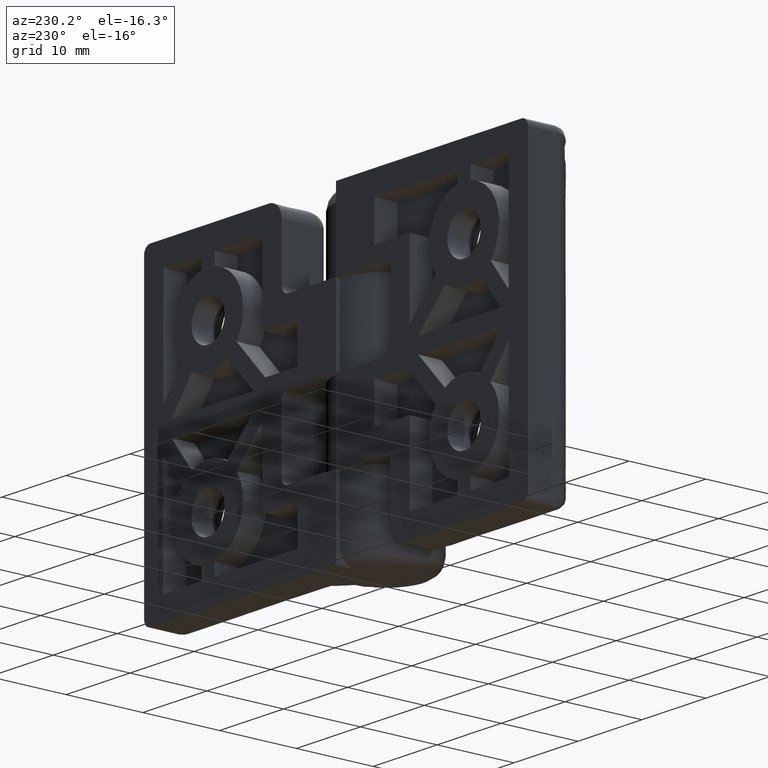
[diagram: clean part render]
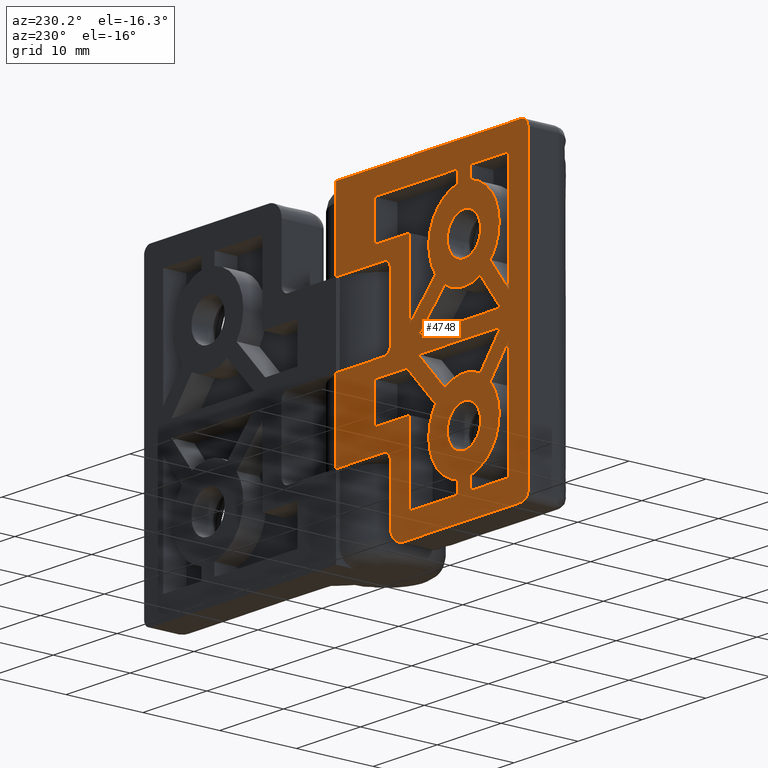
[diagram: same view with one face highlighted and labeled with its STEP entity id]
A machine part, auxiliary view. The second image highlights one B-rep face of the part: STEP entity #4748.
In plain terms, the highlighted face is a freeform B-spline surface patch.
Its self-contained STEP definition (entity closure, byte-faithful):
#1436=CARTESIAN_POINT('',(22.581824768541040,6.500000000000000,30.306889010039711));
#1437=VERTEX_POINT('',#1436);
#1443=CARTESIAN_POINT('',(20.0,6.500000000000000,27.399999999894298));
#1444=VERTEX_POINT('',#1443);
#1445=CARTESIAN_POINT('',(22.581824768541040,6.500000000000000,30.306889010039708));
#1446=CARTESIAN_POINT('',(22.600000000000001,6.500000000000000,30.153982711027506));
#1447=CARTESIAN_POINT('',(22.600000000000001,6.500000000000000,29.999999999894300));
#1448=CARTESIAN_POINT('',(22.599999999999991,6.500000000000001,27.399999999894312));
#1449=CARTESIAN_POINT('',(20.0,6.500000000000000,27.399999999894298));
#1457=(BOUNDED_CURVE()B_SPLINE_CURVE(2,(#1445,#1446,#1447,#1448,#1449),.UNSPECIFIED.,.F.,.U.)B_SPLINE_CURVE_WITH_KNOTS((3,2,3),(0.229562473510691,0.250000000000000,0.500000000000000),.UNSPECIFIED.)CURVE()GEOMETRIC_REPRESENTATION_ITEM()RATIONAL_B_SPLINE_CURVE((0.956026754178177,0.976055948327844,1.0,0.707106781186548,1.0))REPRESENTATION_ITEM(''));
#1458=EDGE_CURVE('',#1437,#1444,#1457,.T.);
#1460=CARTESIAN_POINT('',(17.404849346204220,6.500000000000000,29.841276705778821));
#1461=VERTEX_POINT('',#1460);
#1462=CARTESIAN_POINT('',(20.0,6.500000000000000,27.399999999894298));
#1463=CARTESIAN_POINT('',(17.554161479599799,6.500000000000000,27.399999999894302));
#1464=CARTESIAN_POINT('',(17.404849346204227,6.500000000000000,29.841276705778817));
#1472=(BOUNDED_CURVE()B_SPLINE_CURVE(2,(#1462,#1463,#1464),.UNSPECIFIED.,.F.,.U.)B_SPLINE_CURVE_WITH_KNOTS((3,3),(0.500000000000000,0.739333155634465),.UNSPECIFIED.)CURVE()GEOMETRIC_REPRESENTATION_ITEM()RATIONAL_B_SPLINE_CURVE((1.0,0.719603766709762,0.976072456150487))REPRESENTATION_ITEM(''));
#1473=EDGE_CURVE('',#1444,#1461,#1472,.T.);
#1507=CARTESIAN_POINT('',(20.0,6.500000000000000,32.599999999894301));
#1508=VERTEX_POINT('',#1507);
#1509=CARTESIAN_POINT('',(17.404849346204223,6.499999999999999,29.841276705778817));
#1510=CARTESIAN_POINT('',(17.399999999999995,6.500000000000000,29.920564273733241));
#1511=CARTESIAN_POINT('',(17.399999999999999,6.500000000000000,29.999999999894300));
#1512=CARTESIAN_POINT('',(17.400000000000002,6.500000000000001,32.599999999894301));
#1513=CARTESIAN_POINT('',(20.0,6.500000000000000,32.599999999894301));
#1521=(BOUNDED_CURVE()B_SPLINE_CURVE(2,(#1509,#1510,#1511,#1512,#1513),.UNSPECIFIED.,.F.,.U.)B_SPLINE_CURVE_WITH_KNOTS((3,2,3),(0.739333155634466,0.750000000000000,1.0),.UNSPECIFIED.)CURVE()GEOMETRIC_REPRESENTATION_ITEM()RATIONAL_B_SPLINE_CURVE((0.976072456150487,0.987503014476786,1.0,0.707106781186548,1.0))REPRESENTATION_ITEM(''));
#1522=EDGE_CURVE('',#1461,#1508,#1521,.T.);
#1524=CARTESIAN_POINT('',(20.0,6.500000000000000,32.599999999894301));
#1525=CARTESIAN_POINT('',(22.309253767405398,6.500000000000000,32.599999999894301));
#1526=CARTESIAN_POINT('',(22.581824768541033,6.500000000000000,30.306889010039711));
#1534=(BOUNDED_CURVE()B_SPLINE_CURVE(2,(#1524,#1525,#1526),.UNSPECIFIED.,.F.,.U.)B_SPLINE_CURVE_WITH_KNOTS((3,3),(0.0,0.229562473510691),.UNSPECIFIED.)CURVE()GEOMETRIC_REPRESENTATION_ITEM()RATIONAL_B_SPLINE_CURVE((1.0,0.731050832858703,0.956026754178177))REPRESENTATION_ITEM(''));
#1535=EDGE_CURVE('',#1508,#1437,#1534,.T.);
#1922=CARTESIAN_POINT('',(22.581824768541040,6.500000000000002,10.306889010039709));
#1923=VERTEX_POINT('',#1922);
#1929=CARTESIAN_POINT('',(20.0,6.500000000000000,7.399999999894300));
#1930=VERTEX_POINT('',#1929);
#1931=CARTESIAN_POINT('',(22.581824768541033,6.500000000000002,10.306889010039708));
#1932=CARTESIAN_POINT('',(22.599999999999998,6.499999999999999,10.153982711027501));
#1933=CARTESIAN_POINT('',(22.600000000000001,6.500000000000000,9.999999999894300));
#1934=CARTESIAN_POINT('',(22.599999999999991,6.500000000000001,7.399999999894301));
#1935=CARTESIAN_POINT('',(20.0,6.500000000000000,7.399999999894300));
#1943=(BOUNDED_CURVE()B_SPLINE_CURVE(2,(#1931,#1932,#1933,#1934,#1935),.UNSPECIFIED.,.F.,.U.)B_SPLINE_CURVE_WITH_KNOTS((3,2,3),(0.229562473510691,0.250000000000000,0.500000000000000),.UNSPECIFIED.)CURVE()GEOMETRIC_REPRESENTATION_ITEM()RATIONAL_B_SPLINE_CURVE((0.956026754178177,0.976055948327844,1.0,0.707106781186548,1.0))REPRESENTATION_ITEM(''));
#1944=EDGE_CURVE('',#1923,#1930,#1943,.T.);
#1946=CARTESIAN_POINT('',(17.404849346204220,6.500000000000000,9.841276705778814));
#1947=VERTEX_POINT('',#1946);
#1948=CARTESIAN_POINT('',(20.0,6.500000000000000,7.399999999894300));
#1949=CARTESIAN_POINT('',(17.554161479599795,6.500000000000003,7.399999999894302));
#1950=CARTESIAN_POINT('',(17.404849346204220,6.500000000000000,9.841276705778814));
#1958=(BOUNDED_CURVE()B_SPLINE_CURVE(2,(#1948,#1949,#1950),.UNSPECIFIED.,.F.,.U.)B_SPLINE_CURVE_WITH_KNOTS((3,3),(0.500000000000000,0.739333155634465),.UNSPECIFIED.)CURVE()GEOMETRIC_REPRESENTATION_ITEM()RATIONAL_B_SPLINE_CURVE((1.0,0.719603766709762,0.976072456150487))REPRESENTATION_ITEM(''));
#1959=EDGE_CURVE('',#1930,#1947,#1958,.T.);
#1993=CARTESIAN_POINT('',(20.0,6.500000000000000,12.599999999894299));
#1994=VERTEX_POINT('',#1993);
#1995=CARTESIAN_POINT('',(17.404849346204220,6.500000000000000,9.841276705778814));
#1996=CARTESIAN_POINT('',(17.399999999999999,6.500000000000000,9.920564273733236));
#1997=CARTESIAN_POINT('',(17.399999999999999,6.500000000000000,9.999999999894300));
#1998=CARTESIAN_POINT('',(17.400000000000002,6.500000000000001,12.599999999894298));
#1999=CARTESIAN_POINT('',(20.0,6.500000000000000,12.599999999894299));
#2007=(BOUNDED_CURVE()B_SPLINE_CURVE(2,(#1995,#1996,#1997,#1998,#1999),.UNSPECIFIED.,.F.,.U.)B_SPLINE_CURVE_WITH_KNOTS((3,2,3),(0.739333155634465,0.750000000000000,1.0),.UNSPECIFIED.)CURVE()GEOMETRIC_REPRESENTATION_ITEM()RATIONAL_B_SPLINE_CURVE((0.976072456150487,0.987503014476786,1.0,0.707106781186548,1.0))REPRESENTATION_ITEM(''));
#2008=EDGE_CURVE('',#1947,#1994,#2007,.T.);
#2010=CARTESIAN_POINT('',(20.0,6.500000000000000,12.599999999894299));
#2011=CARTESIAN_POINT('',(22.309253767405401,6.500000000000000,12.599999999894299));
#2012=CARTESIAN_POINT('',(22.581824768541040,6.500000000000002,10.306889010039708));
#2020=(BOUNDED_CURVE()B_SPLINE_CURVE(2,(#2010,#2011,#2012),.UNSPECIFIED.,.F.,.U.)B_SPLINE_CURVE_WITH_KNOTS((3,3),(0.0,0.229562473510691),.UNSPECIFIED.)CURVE()GEOMETRIC_REPRESENTATION_ITEM()RATIONAL_B_SPLINE_CURVE((1.0,0.731050832858703,0.956026754178177))REPRESENTATION_ITEM(''));
#2021=EDGE_CURVE('',#1994,#1923,#2020,.T.);
#2106=CARTESIAN_POINT('',(11.500000000000400,6.500000000000000,37.0));
#2107=VERTEX_POINT('',#2106);
#2108=CARTESIAN_POINT('',(11.500000000000400,6.500000000000000,27.000000000002601));
#2109=VERTEX_POINT('',#2108);
#2110=CARTESIAN_POINT('',(11.500000000000400,6.500000000000000,37.0));
#2111=CARTESIAN_POINT('',(11.500000000000400,6.500000000000000,27.000000000002601));
#2112=QUASI_UNIFORM_CURVE('',1,(#2110,#2111),.UNSPECIFIED.,.F.,.U.);
#2113=EDGE_CURVE('',#2107,#2109,#2112,.T.);
#2134=CARTESIAN_POINT('',(19.000000000000249,6.500000000000000,37.0));
#2135=VERTEX_POINT('',#2134);
#2136=CARTESIAN_POINT('',(19.000000000000249,6.500000000000000,37.0));
#2137=CARTESIAN_POINT('',(11.500000000000400,6.500000000000000,37.0));
#2138=QUASI_UNIFORM_CURVE('',1,(#2136,#2137),.UNSPECIFIED.,.F.,.U.);
#2139=EDGE_CURVE('',#2135,#2107,#2138,.T.);
#2156=CARTESIAN_POINT('',(19.0,6.500000000000000,35.408326913301551));
#2157=VERTEX_POINT('',#2156);
#2158=CARTESIAN_POINT('',(19.0,6.500000000000000,35.408326913301551));
#2159=CARTESIAN_POINT('',(19.000000000000249,6.500000000000000,37.0));
#2160=QUASI_UNIFORM_CURVE('',1,(#2158,#2159),.UNSPECIFIED.,.F.,.U.);
#2161=EDGE_CURVE('',#2157,#2135,#2160,.T.);
#2187=CARTESIAN_POINT('',(15.559502314888899,6.500000000000000,26.754698733886400));
#2188=VERTEX_POINT('',#2187);
#2189=CARTESIAN_POINT('',(19.0,6.500000000000000,35.408326913301543));
#2190=CARTESIAN_POINT('',(16.011818917020033,6.500000000000000,34.855812035606228));
#2191=CARTESIAN_POINT('',(14.889121999860089,6.500000000000000,32.031975902443833));
#2192=CARTESIAN_POINT('',(13.766425082700133,6.500000000000000,29.208139769281438));
#2193=CARTESIAN_POINT('',(15.559502314888899,6.500000000000000,26.754698733886400));
#2201=(BOUNDED_CURVE()B_SPLINE_CURVE(2,(#2189,#2190,#2191,#2192,#2193),.UNSPECIFIED.,.F.,.U.)B_SPLINE_CURVE_WITH_KNOTS((3,2,3),(0.0,0.500000000000000,1.0),.UNSPECIFIED.)CURVE()GEOMETRIC_REPRESENTATION_ITEM()RATIONAL_B_SPLINE_CURVE((1.0,0.875284775002280,1.0,0.875284775002280,1.0))REPRESENTATION_ITEM(''));
#2202=EDGE_CURVE('',#2157,#2188,#2201,.T.);
#2219=CARTESIAN_POINT('',(11.068953510662940,6.500000000000000,22.0));
#2220=VERTEX_POINT('',#2219);
#2221=CARTESIAN_POINT('',(11.068953510662940,6.500000000000000,22.0));
#2222=CARTESIAN_POINT('',(15.559502314888899,6.500000000000000,26.754698733886400));
#2223=QUASI_UNIFORM_CURVE('',1,(#2221,#2222),.UNSPECIFIED.,.F.,.U.);
#2224=EDGE_CURVE('',#2220,#2188,#2223,.T.);
#2241=CARTESIAN_POINT('',(5.999999999999901,6.500000000000000,22.0));
#2242=VERTEX_POINT('',#2241);
#2243=CARTESIAN_POINT('',(5.999999999999901,6.500000000000000,22.0));
#2244=CARTESIAN_POINT('',(11.068953510662940,6.500000000000000,22.0));
#2245=QUASI_UNIFORM_CURVE('',1,(#2243,#2244),.UNSPECIFIED.,.F.,.U.);
#2246=EDGE_CURVE('',#2242,#2220,#2245,.T.);
#2263=CARTESIAN_POINT('',(5.999999999999901,6.500000000000000,27.000000000001201));
#2264=VERTEX_POINT('',#2263);
#2265=CARTESIAN_POINT('',(5.999999999999901,6.500000000000000,27.000000000001201));
#2266=CARTESIAN_POINT('',(5.999999999999901,6.500000000000000,22.0));
#2267=QUASI_UNIFORM_CURVE('',1,(#2265,#2266),.UNSPECIFIED.,.F.,.U.);
#2268=EDGE_CURVE('',#2264,#2242,#2267,.T.);
#2285=CARTESIAN_POINT('',(11.500000000000400,6.500000000000000,27.000000000002601));
#2286=CARTESIAN_POINT('',(5.999999999999901,6.500000000000000,27.000000000001201));
#2287=QUASI_UNIFORM_CURVE('',1,(#2285,#2286),.UNSPECIFIED.,.F.,.U.);
#2288=EDGE_CURVE('',#2109,#2264,#2287,.T.);
#2345=CARTESIAN_POINT('',(25.733138416556699,6.500000000000000,21.000000000105601));
#2346=VERTEX_POINT('',#2345);
#2347=CARTESIAN_POINT('',(12.875490933682620,6.500000000000000,21.000000000105601));
#2348=VERTEX_POINT('',#2347);
#2349=CARTESIAN_POINT('',(25.733138416556699,6.500000000000000,21.000000000105601));
#2350=CARTESIAN_POINT('',(12.875490933682620,6.500000000000000,21.000000000105601));
#2351=QUASI_UNIFORM_CURVE('',1,(#2349,#2350),.UNSPECIFIED.,.F.,.U.);
#2352=EDGE_CURVE('',#2346,#2348,#2351,.T.);
#2373=CARTESIAN_POINT('',(22.531039325800752,6.500000000000000,25.116984545363401));
#2374=VERTEX_POINT('',#2373);
#2375=CARTESIAN_POINT('',(22.531039325800752,6.500000000000000,25.116984545363401));
#2376=CARTESIAN_POINT('',(25.733138416556699,6.500000000000000,21.000000000105601));
#2377=QUASI_UNIFORM_CURVE('',1,(#2375,#2376),.UNSPECIFIED.,.F.,.U.);
#2378=EDGE_CURVE('',#2374,#2346,#2377,.T.);
#2404=CARTESIAN_POINT('',(17.013528619988751,6.500000000000000,25.381451667959201));
#2405=VERTEX_POINT('',#2404);
#2406=CARTESIAN_POINT('',(17.013528619988751,6.500000000000000,25.381451667959212));
#2407=CARTESIAN_POINT('',(19.695496603310851,6.500000000000000,23.647222631413378));
#2408=CARTESIAN_POINT('',(22.531039325800759,6.500000000000000,25.116984545363380));
#2416=(BOUNDED_CURVE()B_SPLINE_CURVE(2,(#2406,#2407,#2408),.UNSPECIFIED.,.F.,.U.)CURVE()GEOMETRIC_REPRESENTATION_ITEM()QUASI_UNIFORM_CURVE()RATIONAL_B_SPLINE_CURVE((1.0,0.864770225786925,1.0))REPRESENTATION_ITEM(''));
#2417=EDGE_CURVE('',#2405,#2374,#2416,.T.);
#2434=CARTESIAN_POINT('',(12.875490933682620,6.500000000000000,21.000000000105601));
#2435=CARTESIAN_POINT('',(17.013528619988751,6.500000000000000,25.381451667959201));
#2436=QUASI_UNIFORM_CURVE('',1,(#2434,#2435),.UNSPECIFIED.,.F.,.U.);
#2437=EDGE_CURVE('',#2348,#2405,#2436,.T.);
#2503=CARTESIAN_POINT('',(21.0,6.500000000000000,3.0));
#2504=VERTEX_POINT('',#2503);
#2505=CARTESIAN_POINT('',(27.0,6.500000000000000,3.0));
#2506=VERTEX_POINT('',#2505);
#2507=CARTESIAN_POINT('',(21.0,6.500000000000000,3.0));
#2508=CARTESIAN_POINT('',(27.0,6.500000000000000,3.0));
#2509=QUASI_UNIFORM_CURVE('',1,(#2507,#2508),.UNSPECIFIED.,.F.,.U.);
#2510=EDGE_CURVE('',#2504,#2506,#2509,.T.);
#2531=CARTESIAN_POINT('',(21.0,6.500000000000000,4.591673086909609));
#2532=VERTEX_POINT('',#2531);
#2533=CARTESIAN_POINT('',(21.0,6.500000000000000,4.591673086909609));
#2534=CARTESIAN_POINT('',(21.0,6.500000000000000,3.0));
#2535=QUASI_UNIFORM_CURVE('',1,(#2533,#2534),.UNSPECIFIED.,.F.,.U.);
#2536=EDGE_CURVE('',#2532,#2504,#2535,.T.);
#2562=CARTESIAN_POINT('',(24.109743760553251,6.500000000000000,13.655134227817900));
#2563=VERTEX_POINT('',#2562);
#2564=CARTESIAN_POINT('',(21.0,6.500000000000000,4.591673086909616));
#2565=CARTESIAN_POINT('',(24.159537082258552,6.500000000000001,5.175871700079516));
#2566=CARTESIAN_POINT('',(25.202302594795569,6.500000000000000,8.215049661249271));
#2567=CARTESIAN_POINT('',(26.245068107332585,6.500000000000001,11.254227622419027));
#2568=CARTESIAN_POINT('',(24.109743760553229,6.500000000000000,13.655134227817880));
#2576=(BOUNDED_CURVE()B_SPLINE_CURVE(2,(#2564,#2565,#2566,#2567,#2568),.UNSPECIFIED.,.F.,.U.)B_SPLINE_CURVE_WITH_KNOTS((3,2,3),(0.0,0.500000000000000,1.0),.UNSPECIFIED.)CURVE()GEOMETRIC_REPRESENTATION_ITEM()RATIONAL_B_SPLINE_CURVE((1.0,0.863453545732978,1.0,0.863453545732978,1.0))REPRESENTATION_ITEM(''));
#2577=EDGE_CURVE('',#2532,#2563,#2576,.T.);
#2594=CARTESIAN_POINT('',(27.0,6.500000000000000,17.371177964249600));
#2595=VERTEX_POINT('',#2594);
#2596=CARTESIAN_POINT('',(27.0,6.500000000000000,17.371177964249600));
#2597=CARTESIAN_POINT('',(24.109743760553251,6.500000000000000,13.655134227817900));
#2598=QUASI_UNIFORM_CURVE('',1,(#2596,#2597),.UNSPECIFIED.,.F.,.U.);
#2599=EDGE_CURVE('',#2595,#2563,#2598,.T.);
#2616=CARTESIAN_POINT('',(27.0,6.500000000000000,3.0));
#2617=CARTESIAN_POINT('',(27.0,6.500000000000000,17.371177964249600));
#2618=QUASI_UNIFORM_CURVE('',1,(#2616,#2617),.UNSPECIFIED.,.F.,.U.);
#2619=EDGE_CURVE('',#2506,#2595,#2618,.T.);
#2676=CARTESIAN_POINT('',(22.531039325800648,6.500000000000000,14.883015454847801));
#2677=VERTEX_POINT('',#2676);
#2678=CARTESIAN_POINT('',(25.733138416556699,6.500000000000000,19.000000000105501));
#2679=VERTEX_POINT('',#2678);
#2680=CARTESIAN_POINT('',(22.531039325800648,6.500000000000000,14.883015454847801));
#2681=CARTESIAN_POINT('',(25.733138416556699,6.500000000000000,19.000000000105501));
#2682=QUASI_UNIFORM_CURVE('',1,(#2680,#2681),.UNSPECIFIED.,.F.,.U.);
#2683=EDGE_CURVE('',#2677,#2679,#2682,.T.);
#2704=CARTESIAN_POINT('',(12.875490933682400,6.500000000000000,19.000000000105601));
#2705=VERTEX_POINT('',#2704);
#2706=CARTESIAN_POINT('',(25.733138416556699,6.500000000000000,19.000000000105501));
#2707=CARTESIAN_POINT('',(12.875490933682400,6.500000000000000,19.000000000105601));
#2708=QUASI_UNIFORM_CURVE('',1,(#2706,#2707),.UNSPECIFIED.,.F.,.U.);
#2709=EDGE_CURVE('',#2679,#2705,#2708,.T.);
#2726=CARTESIAN_POINT('',(17.013528619988652,6.500000000000000,14.618548332252001));
#2727=VERTEX_POINT('',#2726);
#2728=CARTESIAN_POINT('',(12.875490933682400,6.500000000000000,19.000000000105601));
#2729=CARTESIAN_POINT('',(17.013528619988652,6.500000000000000,14.618548332252001));
#2730=QUASI_UNIFORM_CURVE('',1,(#2728,#2729),.UNSPECIFIED.,.F.,.U.);
#2731=EDGE_CURVE('',#2705,#2727,#2730,.T.);
#2757=CARTESIAN_POINT('',(22.531039325800648,6.500000000000000,14.883015454847801));
#2758=CARTESIAN_POINT('',(19.695496603310744,6.499999999999999,16.352777368797831));
#2759=CARTESIAN_POINT('',(17.013528619988652,6.500000000000000,14.618548332252001));
#2767=(BOUNDED_CURVE()B_SPLINE_CURVE(2,(#2757,#2758,#2759),.UNSPECIFIED.,.F.,.U.)CURVE()GEOMETRIC_REPRESENTATION_ITEM()QUASI_UNIFORM_CURVE()RATIONAL_B_SPLINE_CURVE((1.0,0.864770225786925,1.0))REPRESENTATION_ITEM(''));
#2768=EDGE_CURVE('',#2677,#2727,#2767,.T.);
#2848=CARTESIAN_POINT('',(6.0,6.500000000000000,8.0));
#2849=VERTEX_POINT('',#2848);
#2850=CARTESIAN_POINT('',(11.500000000000240,6.500000000000000,8.000000000000091));
#2851=VERTEX_POINT('',#2850);
#2852=CARTESIAN_POINT('',(6.0,6.500000000000000,8.0));
#2853=CARTESIAN_POINT('',(11.500000000000240,6.500000000000000,8.000000000000091));
#2854=QUASI_UNIFORM_CURVE('',1,(#2852,#2853),.UNSPECIFIED.,.F.,.U.);
#2855=EDGE_CURVE('',#2849,#2851,#2854,.T.);
#2876=CARTESIAN_POINT('',(6.0,6.500000000000000,3.0));
#2877=VERTEX_POINT('',#2876);
#2878=CARTESIAN_POINT('',(6.0,6.500000000000000,3.0));
#2879=CARTESIAN_POINT('',(6.0,6.500000000000000,8.0));
#2880=QUASI_UNIFORM_CURVE('',1,(#2878,#2879),.UNSPECIFIED.,.F.,.U.);
#2881=EDGE_CURVE('',#2877,#2849,#2880,.T.);
#2898=CARTESIAN_POINT('',(19.0,6.500000000000000,3.0));
#2899=VERTEX_POINT('',#2898);
#2900=CARTESIAN_POINT('',(19.0,6.500000000000000,3.0));
#2901=CARTESIAN_POINT('',(6.0,6.500000000000000,3.0));
#2902=QUASI_UNIFORM_CURVE('',1,(#2900,#2901),.UNSPECIFIED.,.F.,.U.);
#2903=EDGE_CURVE('',#2899,#2877,#2902,.T.);
#2920=CARTESIAN_POINT('',(19.0,6.500000000000000,4.591673086909609));
#2921=VERTEX_POINT('',#2920);
#2922=CARTESIAN_POINT('',(19.0,6.500000000000000,4.591673086909609));
#2923=CARTESIAN_POINT('',(19.0,6.500000000000000,3.0));
#2924=QUASI_UNIFORM_CURVE('',1,(#2922,#2923),.UNSPECIFIED.,.F.,.U.);
#2925=EDGE_CURVE('',#2921,#2899,#2924,.T.);
#2951=CARTESIAN_POINT('',(15.559502314888899,6.500000000000000,13.245301266324599));
#2952=VERTEX_POINT('',#2951);
#2953=CARTESIAN_POINT('',(15.559502314888880,6.500000000000000,13.245301266324621));
#2954=CARTESIAN_POINT('',(13.766425082699842,6.500000000000000,10.791860230929680));
#2955=CARTESIAN_POINT('',(14.889121999859890,6.500000000000000,7.968024097767243));
#2956=CARTESIAN_POINT('',(16.011818917019937,6.500000000000000,5.144187964604803));
#2957=CARTESIAN_POINT('',(19.0,6.500000000000000,4.591673086909616));
#2965=(BOUNDED_CURVE()B_SPLINE_CURVE(2,(#2953,#2954,#2955,#2956,#2957),.UNSPECIFIED.,.F.,.U.)B_SPLINE_CURVE_WITH_KNOTS((3,2,3),(0.0,0.500000000000000,1.0),.UNSPECIFIED.)CURVE()GEOMETRIC_REPRESENTATION_ITEM()RATIONAL_B_SPLINE_CURVE((1.0,0.875284775002275,1.0,0.875284775002275,1.0))REPRESENTATION_ITEM(''));
#2966=EDGE_CURVE('',#2952,#2921,#2965,.T.);
#2983=CARTESIAN_POINT('',(11.500000000000240,6.500000000000000,17.543597835030099));
#2984=VERTEX_POINT('',#2983);
#2985=CARTESIAN_POINT('',(11.500000000000240,6.500000000000000,17.543597835030099));
#2986=CARTESIAN_POINT('',(15.559502314888899,6.500000000000000,13.245301266324599));
#2987=QUASI_UNIFORM_CURVE('',1,(#2985,#2986),.UNSPECIFIED.,.F.,.U.);
#2988=EDGE_CURVE('',#2984,#2952,#2987,.T.);
#3005=CARTESIAN_POINT('',(11.500000000000240,6.500000000000000,8.000000000000091));
#3006=CARTESIAN_POINT('',(11.500000000000240,6.500000000000000,17.543597835030099));
#3007=QUASI_UNIFORM_CURVE('',1,(#3005,#3006),.UNSPECIFIED.,.F.,.U.);
#3008=EDGE_CURVE('',#2851,#2984,#3007,.T.);
#3083=CARTESIAN_POINT('',(24.109743760553300,6.500000000000000,26.344865772393099));
#3084=VERTEX_POINT('',#3083);
#3085=CARTESIAN_POINT('',(21.000000000000249,6.500000000000000,35.408326913301551));
#3086=VERTEX_POINT('',#3085);
#3087=CARTESIAN_POINT('',(24.109743760553290,6.500000000000000,26.344865772393110));
#3088=CARTESIAN_POINT('',(26.245068107332823,6.500000000000000,28.745772377791919));
#3089=CARTESIAN_POINT('',(25.202302594795860,6.500000000000000,31.784950338961789));
#3090=CARTESIAN_POINT('',(24.159537082258911,6.500000000000000,34.824128300131662));
#3091=CARTESIAN_POINT('',(21.000000000000259,6.500000000000000,35.408326913301579));
#3099=(BOUNDED_CURVE()B_SPLINE_CURVE(2,(#3087,#3088,#3089,#3090,#3091),.UNSPECIFIED.,.F.,.U.)B_SPLINE_CURVE_WITH_KNOTS((3,2,3),(0.0,0.500000000000000,1.0),.UNSPECIFIED.)CURVE()GEOMETRIC_REPRESENTATION_ITEM()RATIONAL_B_SPLINE_CURVE((1.0,0.863453545732972,1.0,0.863453545732972,1.0))REPRESENTATION_ITEM(''));
#3100=EDGE_CURVE('',#3084,#3086,#3099,.T.);
#3121=CARTESIAN_POINT('',(27.0,6.500000000000000,22.628822035961399));
#3122=VERTEX_POINT('',#3121);
#3123=CARTESIAN_POINT('',(27.0,6.500000000000000,22.628822035961399));
#3124=CARTESIAN_POINT('',(24.109743760553300,6.500000000000000,26.344865772393099));
#3125=QUASI_UNIFORM_CURVE('',1,(#3123,#3124),.UNSPECIFIED.,.F.,.U.);
#3126=EDGE_CURVE('',#3122,#3084,#3125,.T.);
#3143=CARTESIAN_POINT('',(27.0,6.500000000000000,37.0));
#3144=VERTEX_POINT('',#3143);
#3145=CARTESIAN_POINT('',(27.0,6.500000000000000,37.0));
#3146=CARTESIAN_POINT('',(27.0,6.500000000000000,22.628822035961399));
#3147=QUASI_UNIFORM_CURVE('',1,(#3145,#3146),.UNSPECIFIED.,.F.,.U.);
#3148=EDGE_CURVE('',#3144,#3122,#3147,.T.);
#3165=CARTESIAN_POINT('',(21.000000000000249,6.500000000000000,37.0));
#3166=VERTEX_POINT('',#3165);
#3167=CARTESIAN_POINT('',(21.000000000000249,6.500000000000000,37.0));
#3168=CARTESIAN_POINT('',(27.0,6.500000000000000,37.0));
#3169=QUASI_UNIFORM_CURVE('',1,(#3167,#3168),.UNSPECIFIED.,.F.,.U.);
#3170=EDGE_CURVE('',#3166,#3144,#3169,.T.);
#3187=CARTESIAN_POINT('',(21.000000000000249,6.500000000000000,35.408326913301551));
#3188=CARTESIAN_POINT('',(21.000000000000249,6.500000000000000,37.0));
#3189=QUASI_UNIFORM_CURVE('',1,(#3187,#3188),.UNSPECIFIED.,.F.,.U.);
#3190=EDGE_CURVE('',#3086,#3166,#3189,.T.);
#3763=CARTESIAN_POINT('',(8.499999999999590,6.500000000000000,38.0));
#3764=VERTEX_POINT('',#3763);
#3765=CARTESIAN_POINT('',(10.499999999999600,6.500000000000000,40.0));
#3766=VERTEX_POINT('',#3765);
#3767=CARTESIAN_POINT('',(8.499999999999600,6.500000000000000,38.0));
#3768=CARTESIAN_POINT('',(8.499999999999600,6.500000000000001,39.999999999999993));
#3769=CARTESIAN_POINT('',(10.499999999999600,6.500000000000000,40.0));
#3777=(BOUNDED_CURVE()B_SPLINE_CURVE(2,(#3767,#3768,#3769),.UNSPECIFIED.,.F.,.U.)CURVE()GEOMETRIC_REPRESENTATION_ITEM()QUASI_UNIFORM_CURVE()RATIONAL_B_SPLINE_CURVE((1.0,0.707106781186548,1.0))REPRESENTATION_ITEM(''));
#3778=EDGE_CURVE('',#3764,#3766,#3777,.T.);
#3808=CARTESIAN_POINT('',(29.0,6.500000000000000,40.0));
#3809=VERTEX_POINT('',#3808);
#3816=CARTESIAN_POINT('',(30.0,6.500000000000000,39.0));
#3817=VERTEX_POINT('',#3816);
#3823=CARTESIAN_POINT('',(29.0,6.500000000000000,40.0));
#3824=CARTESIAN_POINT('',(30.000000000000004,6.500000000000001,39.999999999999993));
#3825=CARTESIAN_POINT('',(30.0,6.500000000000000,39.0));
#3833=(BOUNDED_CURVE()B_SPLINE_CURVE(2,(#3823,#3824,#3825),.UNSPECIFIED.,.F.,.U.)CURVE()GEOMETRIC_REPRESENTATION_ITEM()QUASI_UNIFORM_CURVE()RATIONAL_B_SPLINE_CURVE((1.0,0.707106781186548,1.0))REPRESENTATION_ITEM(''));
#3834=EDGE_CURVE('',#3809,#3817,#3833,.T.);
#3853=CARTESIAN_POINT('',(30.0,6.500000000000000,1.0));
#3854=VERTEX_POINT('',#3853);
#3861=CARTESIAN_POINT('',(29.0,6.500000000000000,0.0));
#3862=VERTEX_POINT('',#3861);
#3868=CARTESIAN_POINT('',(30.0,6.500000000000000,1.0));
#3869=CARTESIAN_POINT('',(30.000000000000004,6.500000000000001,0.0));
#3870=CARTESIAN_POINT('',(29.0,6.500000000000000,0.0));
#3878=(BOUNDED_CURVE()B_SPLINE_CURVE(2,(#3868,#3869,#3870),.UNSPECIFIED.,.F.,.U.)CURVE()GEOMETRIC_REPRESENTATION_ITEM()QUASI_UNIFORM_CURVE()RATIONAL_B_SPLINE_CURVE((1.0,0.707106781186548,1.0))REPRESENTATION_ITEM(''));
#3879=EDGE_CURVE('',#3854,#3862,#3878,.T.);
#3913=CARTESIAN_POINT('',(7.499999999999590,6.500000000000000,20.0));
#3914=VERTEX_POINT('',#3913);
#3920=CARTESIAN_POINT('',(8.499999999999590,6.500000000000000,19.0));
#3921=VERTEX_POINT('',#3920);
#3922=CARTESIAN_POINT('',(8.499999999999590,6.500000000000000,19.0));
#3923=CARTESIAN_POINT('',(8.499999999999590,6.500000000000001,19.999999999999996));
#3924=CARTESIAN_POINT('',(7.499999999999590,6.500000000000000,20.0));
#3932=(BOUNDED_CURVE()B_SPLINE_CURVE(2,(#3922,#3923,#3924),.UNSPECIFIED.,.F.,.U.)CURVE()GEOMETRIC_REPRESENTATION_ITEM()QUASI_UNIFORM_CURVE()RATIONAL_B_SPLINE_CURVE((1.0,0.707106781186548,1.0))REPRESENTATION_ITEM(''));
#3933=EDGE_CURVE('',#3921,#3914,#3932,.T.);
#3989=CARTESIAN_POINT('',(8.499999999999590,6.500000000000000,11.000000000001499));
#3990=VERTEX_POINT('',#3989);
#3996=CARTESIAN_POINT('',(7.499999999999799,6.500000000000000,10.000000000001499));
#3997=VERTEX_POINT('',#3996);
#3998=CARTESIAN_POINT('',(7.499999999999799,6.500000000000000,10.000000000001499));
#3999=CARTESIAN_POINT('',(8.499999999999590,6.500000000000000,10.000000000001709));
#4000=CARTESIAN_POINT('',(8.499999999999590,6.500000000000000,11.000000000001499));
#4008=(BOUNDED_CURVE()B_SPLINE_CURVE(2,(#3998,#3999,#4000),.UNSPECIFIED.,.F.,.U.)CURVE()GEOMETRIC_REPRESENTATION_ITEM()QUASI_UNIFORM_CURVE()RATIONAL_B_SPLINE_CURVE((1.0,0.707106781186622,1.0))REPRESENTATION_ITEM(''));
#4009=EDGE_CURVE('',#3997,#3990,#4008,.T.);
#4142=CARTESIAN_POINT('',(7.499999999999590,6.500000000000000,30.0));
#4143=VERTEX_POINT('',#4142);
#4144=CARTESIAN_POINT('',(8.499999999999590,6.500000000000000,31.0));
#4145=VERTEX_POINT('',#4144);
#4146=CARTESIAN_POINT('',(7.499999999999590,6.500000000000000,30.0));
#4147=CARTESIAN_POINT('',(8.499999999999590,6.500000000000001,30.000000000000004));
#4148=CARTESIAN_POINT('',(8.499999999999590,6.500000000000000,31.0));
#4156=(BOUNDED_CURVE()B_SPLINE_CURVE(2,(#4146,#4147,#4148),.UNSPECIFIED.,.F.,.U.)CURVE()GEOMETRIC_REPRESENTATION_ITEM()QUASI_UNIFORM_CURVE()RATIONAL_B_SPLINE_CURVE((1.0,0.707106781186548,1.0))REPRESENTATION_ITEM(''));
#4157=EDGE_CURVE('',#4143,#4145,#4156,.T.);
#4312=CARTESIAN_POINT('',(8.499999999999590,6.500000000000000,38.0));
#4313=CARTESIAN_POINT('',(8.499999999999590,6.500000000000000,31.0));
#4314=QUASI_UNIFORM_CURVE('',1,(#4312,#4313),.UNSPECIFIED.,.F.,.U.);
#4315=EDGE_CURVE('',#3764,#4145,#4314,.T.);
#4328=CARTESIAN_POINT('',(3.979039E-013,6.500000000000000,9.999999999998680));
#4329=VERTEX_POINT('',#4328);
#4330=CARTESIAN_POINT('',(7.499999999999799,6.500000000000000,10.000000000001499));
#4331=CARTESIAN_POINT('',(3.979039E-013,6.500000000000000,9.999999999998680));
#4332=QUASI_UNIFORM_CURVE('',1,(#4330,#4331),.UNSPECIFIED.,.F.,.U.);
#4333=EDGE_CURVE('',#3997,#4329,#4332,.T.);
#4373=CARTESIAN_POINT('',(8.499999999999590,6.500000000000000,19.0));
#4374=CARTESIAN_POINT('',(8.499999999999590,6.500000000000000,11.000000000001499));
#4375=QUASI_UNIFORM_CURVE('',1,(#4373,#4374),.UNSPECIFIED.,.F.,.U.);
#4376=EDGE_CURVE('',#3921,#3990,#4375,.T.);
#4393=CARTESIAN_POINT('',(3.979039E-013,6.500000000000000,20.0));
#4394=VERTEX_POINT('',#4393);
#4395=CARTESIAN_POINT('',(3.979039E-013,6.500000000000000,20.0));
#4396=CARTESIAN_POINT('',(7.499999999999590,6.500000000000000,20.0));
#4397=QUASI_UNIFORM_CURVE('',1,(#4395,#4396),.UNSPECIFIED.,.F.,.U.);
#4398=EDGE_CURVE('',#4394,#3914,#4397,.T.);
#4441=CARTESIAN_POINT('',(3.979039E-013,6.500000000000000,0.0));
#4442=VERTEX_POINT('',#4441);
#4448=CARTESIAN_POINT('',(3.979039E-013,6.500000000000000,0.0));
#4449=CARTESIAN_POINT('',(29.0,6.500000000000000,0.0));
#4450=QUASI_UNIFORM_CURVE('',1,(#4448,#4449),.UNSPECIFIED.,.F.,.U.);
#4451=EDGE_CURVE('',#4442,#3862,#4450,.T.);
#4467=CARTESIAN_POINT('',(10.499999999999600,6.500000000000000,40.0));
#4468=CARTESIAN_POINT('',(29.0,6.500000000000000,40.0));
#4469=QUASI_UNIFORM_CURVE('',1,(#4467,#4468),.UNSPECIFIED.,.F.,.U.);
#4470=EDGE_CURVE('',#3766,#3809,#4469,.T.);
#4481=CARTESIAN_POINT('',(3.979039E-013,6.500000000000000,9.999999999998680));
#4482=CARTESIAN_POINT('',(3.979039E-013,6.500000000000000,0.0));
#4483=QUASI_UNIFORM_CURVE('',1,(#4481,#4482),.UNSPECIFIED.,.F.,.U.);
#4484=EDGE_CURVE('',#4329,#4442,#4483,.T.);
#4585=CARTESIAN_POINT('',(30.0,6.500000000000000,39.0));
#4586=CARTESIAN_POINT('',(30.0,6.500000000000000,1.0));
#4587=QUASI_UNIFORM_CURVE('',1,(#4585,#4586),.UNSPECIFIED.,.F.,.U.);
#4588=EDGE_CURVE('',#3817,#3854,#4587,.T.);
#4598=CARTESIAN_POINT('',(3.979039E-013,6.500000000000000,30.0));
#4599=VERTEX_POINT('',#4598);
#4605=CARTESIAN_POINT('',(3.979039E-013,6.500000000000000,30.0));
#4606=CARTESIAN_POINT('',(3.979039E-013,6.500000000000000,20.0));
#4607=QUASI_UNIFORM_CURVE('',1,(#4605,#4606),.UNSPECIFIED.,.F.,.U.);
#4608=EDGE_CURVE('',#4599,#4394,#4607,.T.);
#4652=CARTESIAN_POINT('',(7.499999999999590,6.500000000000000,30.0));
#4653=CARTESIAN_POINT('',(3.979039E-013,6.500000000000000,30.0));
#4654=QUASI_UNIFORM_CURVE('',1,(#4652,#4653),.UNSPECIFIED.,.F.,.U.);
#4655=EDGE_CURVE('',#4143,#4599,#4654,.T.);
#4668=CARTESIAN_POINT('',(-1.498499941853762,6.500000000000000,-1.997999922472239));
#4669=CARTESIAN_POINT('',(-1.498499941853762,6.500000000000000,41.998000995355838));
#4670=CARTESIAN_POINT('',(31.498500746516861,6.500000000000000,-1.997999922472239));
#4671=CARTESIAN_POINT('',(31.498500746516861,6.500000000000000,41.998000995355838));
#4672=B_SPLINE_SURFACE_WITH_KNOTS('',1,1,((#4668,#4670),(#4669,#4671)),.UNSPECIFIED.,.F.,.F.,.U.,(2,2),(2,2),(0.0,43.996000917828077),(0.0,32.997000688370633),.UNSPECIFIED.);
#4673=ORIENTED_EDGE('',*,*,#4315,.F.);
#4674=ORIENTED_EDGE('',*,*,#3778,.T.);
#4675=ORIENTED_EDGE('',*,*,#4470,.T.);
#4676=ORIENTED_EDGE('',*,*,#3834,.T.);
#4677=ORIENTED_EDGE('',*,*,#4588,.T.);
#4678=ORIENTED_EDGE('',*,*,#3879,.T.);
#4679=ORIENTED_EDGE('',*,*,#4451,.F.);
#4680=ORIENTED_EDGE('',*,*,#4484,.F.);
#4681=ORIENTED_EDGE('',*,*,#4333,.F.);
#4682=ORIENTED_EDGE('',*,*,#4009,.T.);
#4683=ORIENTED_EDGE('',*,*,#4376,.F.);
#4684=ORIENTED_EDGE('',*,*,#3933,.T.);
#4685=ORIENTED_EDGE('',*,*,#4398,.F.);
#4686=ORIENTED_EDGE('',*,*,#4608,.F.);
#4687=ORIENTED_EDGE('',*,*,#4655,.F.);
#4688=ORIENTED_EDGE('',*,*,#4157,.T.);
#4689=EDGE_LOOP('',(#4673,#4674,#4675,#4676,#4677,#4678,#4679,#4680,#4681,#4682,#4683,#4684,#4685,#4686,#4687,#4688));
#4690=FACE_OUTER_BOUND('',#4689,.T.);
#4691=ORIENTED_EDGE('',*,*,#2768,.F.);
#4692=ORIENTED_EDGE('',*,*,#2683,.T.);
#4693=ORIENTED_EDGE('',*,*,#2709,.T.);
#4694=ORIENTED_EDGE('',*,*,#2731,.T.);
#4695=EDGE_LOOP('',(#4691,#4692,#4693,#4694));
#4696=FACE_BOUND('',#4695,.T.);
#4697=ORIENTED_EDGE('',*,*,#3008,.F.);
#4698=ORIENTED_EDGE('',*,*,#2855,.F.);
#4699=ORIENTED_EDGE('',*,*,#2881,.F.);
#4700=ORIENTED_EDGE('',*,*,#2903,.F.);
#4701=ORIENTED_EDGE('',*,*,#2925,.F.);
#4702=ORIENTED_EDGE('',*,*,#2966,.F.);
#4703=ORIENTED_EDGE('',*,*,#2988,.F.);
#4704=EDGE_LOOP('',(#4697,#4698,#4699,#4700,#4701,#4702,#4703));
#4705=FACE_BOUND('',#4704,.T.);
#4706=ORIENTED_EDGE('',*,*,#3190,.F.);
#4707=ORIENTED_EDGE('',*,*,#3100,.F.);
#4708=ORIENTED_EDGE('',*,*,#3126,.F.);
#4709=ORIENTED_EDGE('',*,*,#3148,.F.);
#4710=ORIENTED_EDGE('',*,*,#3170,.F.);
#4711=EDGE_LOOP('',(#4706,#4707,#4708,#4709,#4710));
#4712=FACE_BOUND('',#4711,.T.);
#4713=ORIENTED_EDGE('',*,*,#2510,.T.);
#4714=ORIENTED_EDGE('',*,*,#2619,.T.);
#4715=ORIENTED_EDGE('',*,*,#2599,.T.);
#4716=ORIENTED_EDGE('',*,*,#2577,.F.);
#4717=ORIENTED_EDGE('',*,*,#2536,.T.);
#4718=EDGE_LOOP('',(#4713,#4714,#4715,#4716,#4717));
#4719=FACE_BOUND('',#4718,.T.);
#4720=ORIENTED_EDGE('',*,*,#2437,.F.);
#4721=ORIENTED_EDGE('',*,*,#2352,.F.);
#4722=ORIENTED_EDGE('',*,*,#2378,.F.);
#4723=ORIENTED_EDGE('',*,*,#2417,.F.);
#4724=EDGE_LOOP('',(#4720,#4721,#4722,#4723));
#4725=FACE_BOUND('',#4724,.T.);
#4726=ORIENTED_EDGE('',*,*,#2113,.T.);
#4727=ORIENTED_EDGE('',*,*,#2288,.T.);
#4728=ORIENTED_EDGE('',*,*,#2268,.T.);
#4729=ORIENTED_EDGE('',*,*,#2246,.T.);
#4730=ORIENTED_EDGE('',*,*,#2224,.T.);
#4731=ORIENTED_EDGE('',*,*,#2202,.F.);
#4732=ORIENTED_EDGE('',*,*,#2161,.T.);
#4733=ORIENTED_EDGE('',*,*,#2139,.T.);
#4734=EDGE_LOOP('',(#4726,#4727,#4728,#4729,#4730,#4731,#4732,#4733));
#4735=FACE_BOUND('',#4734,.T.);
#4736=ORIENTED_EDGE('',*,*,#1959,.F.);
#4737=ORIENTED_EDGE('',*,*,#1944,.F.);
#4738=ORIENTED_EDGE('',*,*,#2021,.F.);
#4739=ORIENTED_EDGE('',*,*,#2008,.F.);
#4740=EDGE_LOOP('',(#4736,#4737,#4738,#4739));
#4741=FACE_BOUND('',#4740,.T.);
#4742=ORIENTED_EDGE('',*,*,#1473,.F.);
#4743=ORIENTED_EDGE('',*,*,#1458,.F.);
#4744=ORIENTED_EDGE('',*,*,#1535,.F.);
#4745=ORIENTED_EDGE('',*,*,#1522,.F.);
#4746=EDGE_LOOP('',(#4742,#4743,#4744,#4745));
#4747=FACE_BOUND('',#4746,.T.);
#4748=ADVANCED_FACE('',(#4690,#4696,#4705,#4712,#4719,#4725,#4735,#4741,#4747),#4672,.T.);